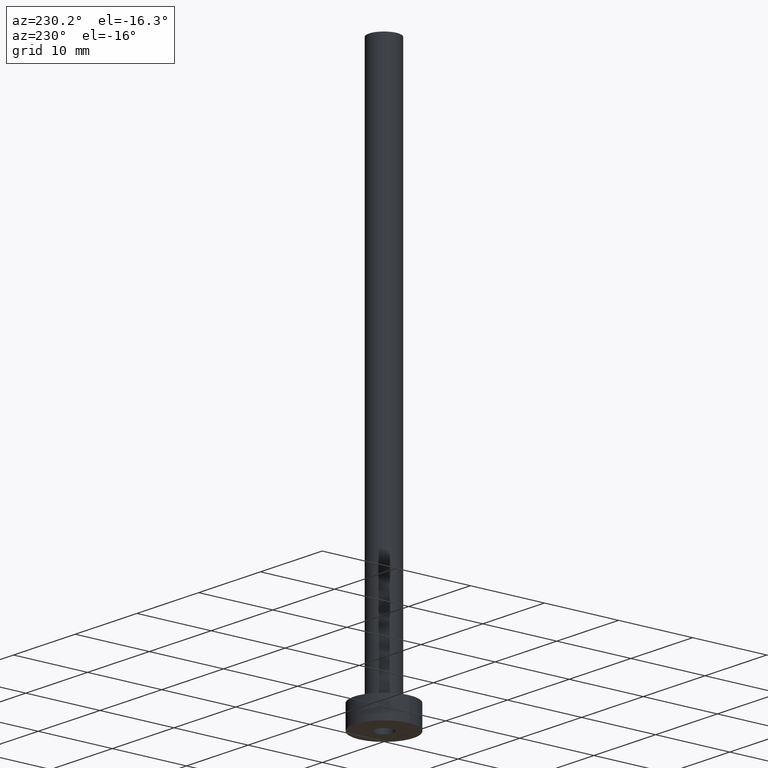
[diagram: clean part render]
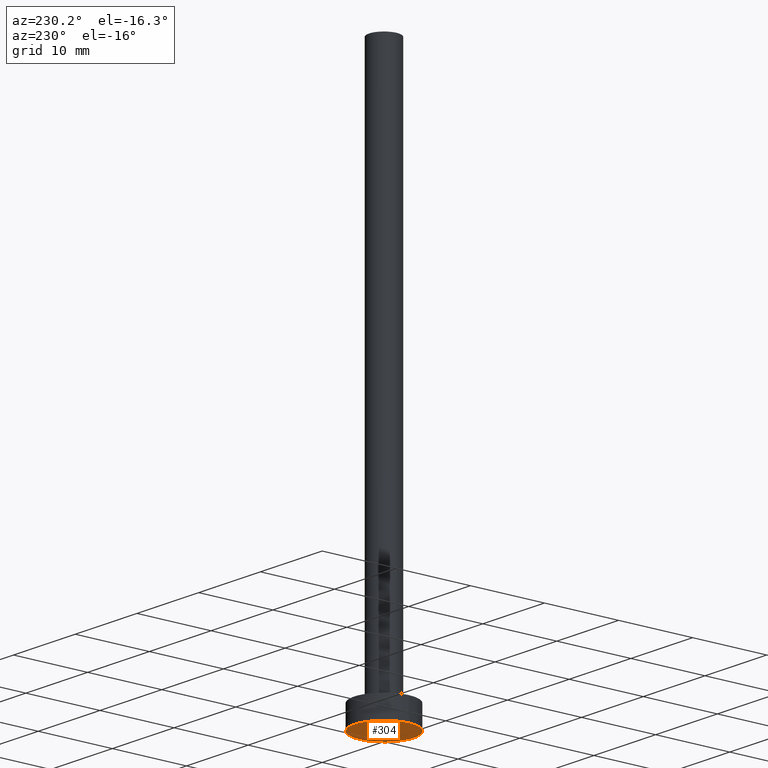
[diagram: same view with one face highlighted and labeled with its STEP entity id]
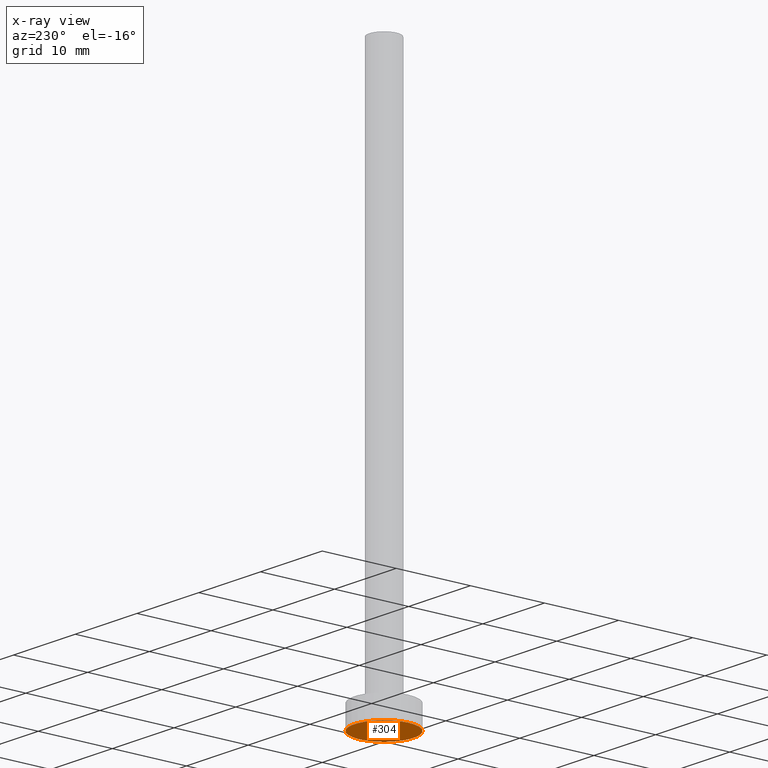
[diagram: x-ray of the same camera — body ghosted, the highlighted face saturated]
A machine part, auxiliary view. The second image highlights one B-rep face of the part: STEP entity #304.
The next image is the same camera in x-ray: the body ghosted, the highlighted face saturated — about 0% of this face is hidden behind the body in this view.
In plain terms, the highlighted planar face has unit normal (0, 0, 1).
Its self-contained STEP definition (entity closure, byte-faithful):
#6 = CARTESIAN_POINT ( 'NONE',  ( 4.000000000000000000, 4.898587196589412829E-16, 0.000000000000000000 ) ) ;
#9 = DIRECTION ( 'NONE',  ( -0.000000000000000000, -0.000000000000000000, -1.000000000000000000 ) ) ;
#34 = CIRCLE ( 'NONE', #204, 1.149999999999999911 ) ;
#41 = DIRECTION ( 'NONE',  ( -0.000000000000000000, -0.000000000000000000, -1.000000000000000000 ) ) ;
#71 = PLANE ( 'NONE',  #103 ) ;
#74 = CARTESIAN_POINT ( 'NONE',  ( -4.000000000000000000, 0.000000000000000000, 0.000000000000000000 ) ) ;
#75 = DIRECTION ( 'NONE',  ( 0.000000000000000000, 0.000000000000000000, 1.000000000000000000 ) ) ;
#78 = ORIENTED_EDGE ( 'NONE', *, *, #79, .F. ) ;
#79 = EDGE_CURVE ( 'NONE', #231, #424, #441, .T. ) ;
#103 = AXIS2_PLACEMENT_3D ( 'NONE', #313, #75, #279 ) ;
#117 = AXIS2_PLACEMENT_3D ( 'NONE', #450, #133, #205 ) ;
#122 = ORIENTED_EDGE ( 'NONE', *, *, #255, .F. ) ;
#133 = DIRECTION ( 'NONE',  ( 0.000000000000000000, 0.000000000000000000, 1.000000000000000000 ) ) ;
#139 = FACE_OUTER_BOUND ( 'NONE', #400, .T. ) ;
#140 = CARTESIAN_POINT ( 'NONE',  ( 1.149999999999999911, 1.408343819019456028E-16, 0.000000000000000000 ) ) ;
#146 = ORIENTED_EDGE ( 'NONE', *, *, #456, .F. ) ;
#191 = CARTESIAN_POINT ( 'NONE',  ( 0.000000000000000000, 0.000000000000000000, 0.000000000000000000 ) ) ;
#197 = ORIENTED_EDGE ( 'NONE', *, *, #399, .F. ) ;
#204 = AXIS2_PLACEMENT_3D ( 'NONE', #191, #9, #334 ) ;
#205 = DIRECTION ( 'NONE',  ( 1.000000000000000000, 0.000000000000000000, 0.000000000000000000 ) ) ;
#231 = VERTEX_POINT ( 'NONE', #74 ) ;
#250 = AXIS2_PLACEMENT_3D ( 'NONE', #387, #312, #455 ) ;
#255 = EDGE_CURVE ( 'NONE', #424, #231, #282, .T. ) ;
#256 = CARTESIAN_POINT ( 'NONE',  ( 0.000000000000000000, 0.000000000000000000, 0.000000000000000000 ) ) ;
#274 = CIRCLE ( 'NONE', #428, 1.149999999999999911 ) ;
#279 = DIRECTION ( 'NONE',  ( 1.000000000000000000, 0.000000000000000000, -0.000000000000000000 ) ) ;
#282 = CIRCLE ( 'NONE', #250, 4.000000000000000000 ) ;
#288 = DIRECTION ( 'NONE',  ( 1.000000000000000000, 0.000000000000000000, 0.000000000000000000 ) ) ;
#304 = ADVANCED_FACE ( 'NONE', ( #393, #139 ), #71, .F. ) ;
#312 = DIRECTION ( 'NONE',  ( 0.000000000000000000, 0.000000000000000000, 1.000000000000000000 ) ) ;
#313 = CARTESIAN_POINT ( 'NONE',  ( 0.000000000000000000, 0.000000000000000000, 0.000000000000000000 ) ) ;
#332 = VERTEX_POINT ( 'NONE', #140 ) ;
#334 = DIRECTION ( 'NONE',  ( 1.000000000000000000, 0.000000000000000000, 0.000000000000000000 ) ) ;
#387 = CARTESIAN_POINT ( 'NONE',  ( 0.000000000000000000, 0.000000000000000000, 0.000000000000000000 ) ) ;
#393 = FACE_BOUND ( 'NONE', #404, .T. ) ;
#398 = CARTESIAN_POINT ( 'NONE',  ( -1.149999999999999911, 0.000000000000000000, 0.000000000000000000 ) ) ;
#399 = EDGE_CURVE ( 'NONE', #332, #430, #34, .T. ) ;
#400 = EDGE_LOOP ( 'NONE', ( #78, #122 ) ) ;
#404 = EDGE_LOOP ( 'NONE', ( #146, #197 ) ) ;
#424 = VERTEX_POINT ( 'NONE', #6 ) ;
#428 = AXIS2_PLACEMENT_3D ( 'NONE', #256, #41, #288 ) ;
#430 = VERTEX_POINT ( 'NONE', #398 ) ;
#441 = CIRCLE ( 'NONE', #117, 4.000000000000000000 ) ;
#450 = CARTESIAN_POINT ( 'NONE',  ( 0.000000000000000000, 0.000000000000000000, 0.000000000000000000 ) ) ;
#455 = DIRECTION ( 'NONE',  ( 1.000000000000000000, 0.000000000000000000, 0.000000000000000000 ) ) ;
#456 = EDGE_CURVE ( 'NONE', #430, #332, #274, .T. ) ;